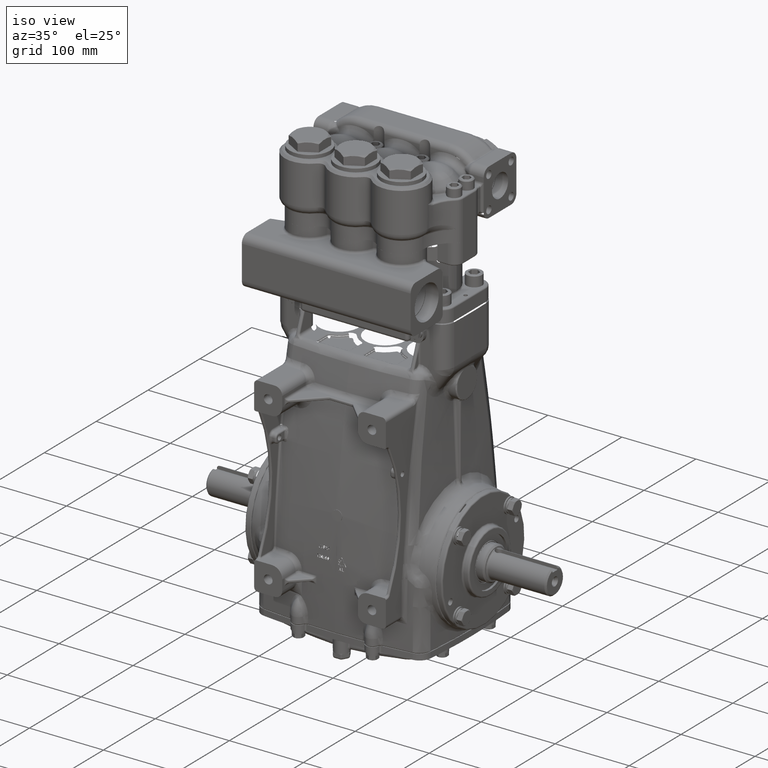
[diagram: clean part render]
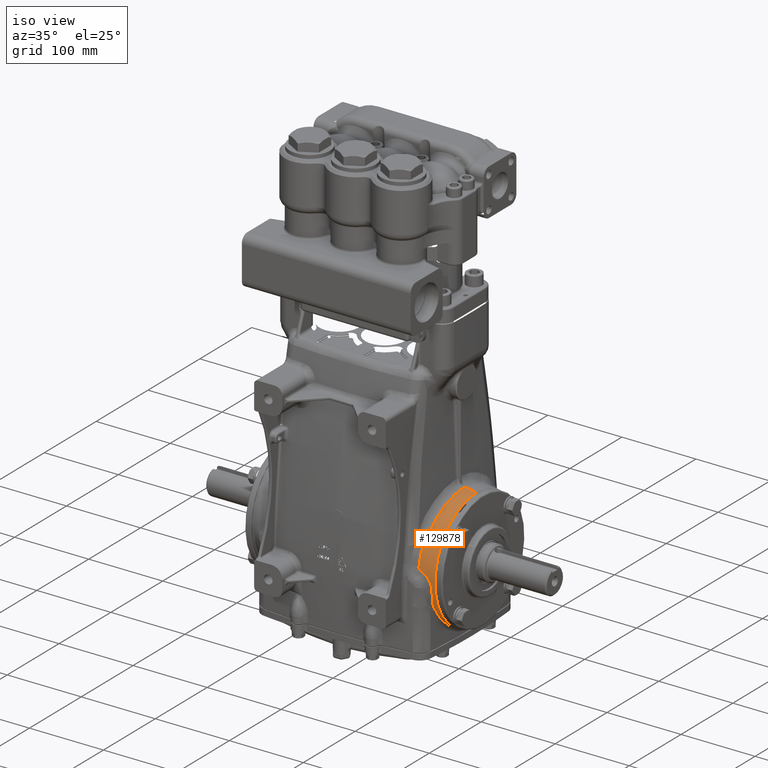
[diagram: same view with one face highlighted and labeled with its STEP entity id]
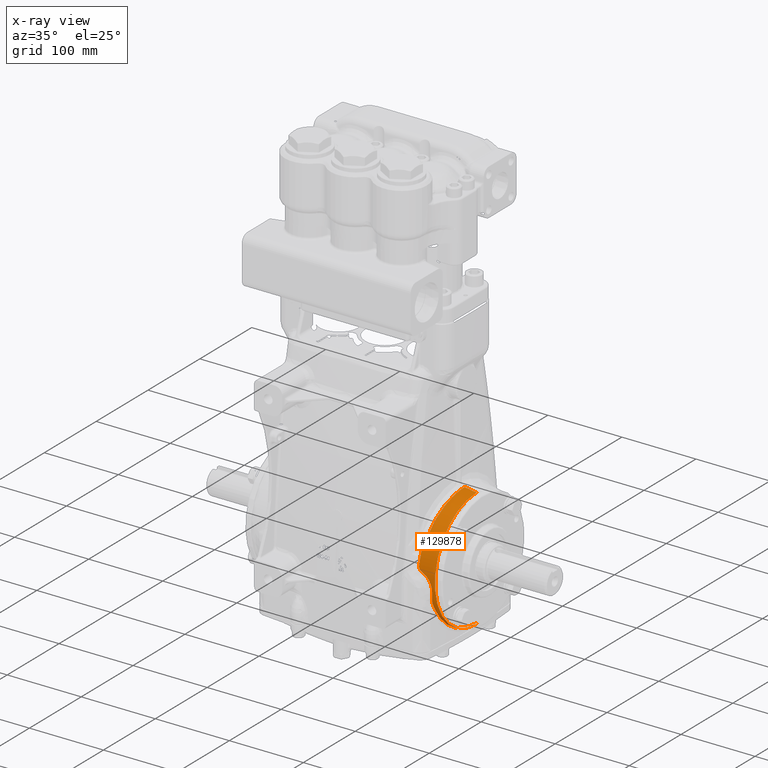
[diagram: x-ray of the same camera — body ghosted, the highlighted face saturated]
A machine part, iso view. The second image highlights one B-rep face of the part: STEP entity #129878.
The next image is the same camera in x-ray: the body ghosted, the highlighted face saturated — about 0% of this face is hidden behind the body in this view.
In plain terms, the highlighted toroidal blend (fillet) surface has major radius 710.174 mm and minor (blend) radius 800 mm.
Its self-contained STEP definition (entity closure, byte-faithful):
#263 = ORIENTED_EDGE ( 'NONE', *, *, #130620, .F. ) ;
#523 = CARTESIAN_POINT ( 'NONE',  ( 4.811355340674883685, -0.2864910433851791671, -3.157124972228495086 ) ) ;
#1116 = CARTESIAN_POINT ( 'NONE',  ( 4.240991227555344523, -0.1264003216158212650, 3.249621060336789657 ) ) ;
#1172 = CARTESIAN_POINT ( 'NONE',  ( 4.671995195232788944, -2.817595301799574514, -1.491509972633686898 ) ) ;
#1260 = CARTESIAN_POINT ( 'NONE',  ( 4.065177188191593238, -3.083984889762754644, 1.098068107524425852 ) ) ;
#1502 = CARTESIAN_POINT ( 'NONE',  ( 4.146795280029016872, -2.739778042975806294, 1.784677835696039105 ) ) ;
#3048 = VERTEX_POINT ( 'NONE', #75154 ) ;
#3328 = CARTESIAN_POINT ( 'NONE',  ( 4.674638175687860553, -3.086997047895380319, -0.7981781258625720854 ) ) ;
#5136 = DIRECTION ( 'NONE',  ( 1.000000000000000000, -0.0000000000000000000, 1.014631576207051350E-16 ) ) ;
#5890 = B_SPLINE_CURVE_WITH_KNOTS ( 'NONE', 3,
 ( #22433, #63108, #103806, #12400 ),
 .UNSPECIFIED., .F., .F.,
 ( 4, 4 ),
 ( 0.0000000000000000000, 1.000000000000000000 ),
 .UNSPECIFIED. ) ;
#9150 = CARTESIAN_POINT ( 'NONE',  ( 4.143842590774164947, -3.231423251180023382, 0.4531311649784011686 ) ) ;
#10098 = AXIS2_PLACEMENT_3D ( 'NONE', #110833, #40145, #80836 ) ;
#11137 = CARTESIAN_POINT ( 'NONE',  ( 4.235682771569069693, -0.6266466288404147766, 3.191829271269768231 ) ) ;
#11191 = CARTESIAN_POINT ( 'NONE',  ( 4.701454750326896637, -2.506536445759398823, -1.967938369618047689 ) ) ;
#11276 = CARTESIAN_POINT ( 'NONE',  ( 4.068196207595590863, -3.204746991281274049, 0.6630307251519698131 ) ) ;
#11345 = CARTESIAN_POINT ( 'NONE',  ( 2.731847993664263218E-15, 0.0000000000000000000, 0.0000000000000000000 ) ) ;
#12400 = CARTESIAN_POINT ( 'NONE',  ( 4.637802879207589157, -2.974517227941448461, -1.161161906720954651 ) ) ;
#13371 = CARTESIAN_POINT ( 'NONE',  ( 4.627811670758023688, -3.003579151184962548, -1.090805080114700454 ) ) ;
#13437 = AXIS2_PLACEMENT_3D ( 'NONE', #11345, #52052, #92723 ) ;
#15936 = VERTEX_POINT ( 'NONE', #43703 ) ;
#16753 = CARTESIAN_POINT ( 'NONE',  ( 4.306769883665692689, -3.220916920437658870, 0.3587307481807804899 ) ) ;
#20135 = ORIENTED_EDGE ( 'NONE', *, *, #48328, .F. ) ;
#21151 = CARTESIAN_POINT ( 'NONE',  ( 4.220173851410993215, -1.229921036881801433, 3.013587734413658570 ) ) ;
#21210 = CARTESIAN_POINT ( 'NONE',  ( 4.750268013655625232, -1.891747720313454284, -2.567528510850987988 ) ) ;
#21369 = FACE_OUTER_BOUND ( 'NONE', #102421, .T. ) ;
#21446 = ORIENTED_EDGE ( 'NONE', *, *, #78031, .F. ) ;
#22433 = CARTESIAN_POINT ( 'NONE',  ( 4.671995195232788944, -2.817595301799574514, -1.491509972633686898 ) ) ;
#26751 = ORIENTED_EDGE ( 'NONE', *, *, #35128, .F. ) ;
#26759 = CARTESIAN_POINT ( 'NONE',  ( 4.526293261852023520, -3.205334629084368725, 0.1742590804353988387 ) ) ;
#26985 = ORIENTED_EDGE ( 'NONE', *, *, #39523, .F. ) ;
#28787 = B_SPLINE_CURVE_WITH_KNOTS ( 'NONE', 3,
 ( #52237, #92910, #1502, #42226 ),
 .UNSPECIFIED., .F., .F.,
 ( 4, 4 ),
 ( 0.0000000000000000000, 1.000000000000000000 ),
 .UNSPECIFIED. ) ;
#30756 = ORIENTED_EDGE ( 'NONE', *, *, #37747, .F. ) ;
#31172 = CARTESIAN_POINT ( 'NONE',  ( 4.192740757286638420, -1.893362396004754089, 2.661075382058560646 ) ) ;
#31233 = CARTESIAN_POINT ( 'NONE',  ( 4.790303181778289954, -1.127149556421079390, -2.966354360120121214 ) ) ;
#31609 = CARTESIAN_POINT ( 'NONE',  ( 4.068196207595590863, -3.204746991281274049, 0.6630307251519698131 ) ) ;
#31972 = CARTESIAN_POINT ( 'NONE',  ( 4.073807278298714252, -2.959947933500720829, 1.394250575635964218 ) ) ;
#32267 = CARTESIAN_POINT ( 'NONE',  ( 4.671995195232788944, -2.817595301799574514, -1.491509972633686898 ) ) ;
#33141 = ORIENTED_EDGE ( 'NONE', *, *, #106257, .F. ) ;
#35128 = EDGE_CURVE ( 'NONE', #113731, #94654, #62079, .T. ) ;
#36775 = CARTESIAN_POINT ( 'NONE',  ( 4.713406592358675873, -3.169753574594053269, -0.2763370845249724650 ) ) ;
#37747 = EDGE_CURVE ( 'NONE', #100721, #111430, #5890, .T. ) ;
#39523 = EDGE_CURVE ( 'NONE', #15936, #100721, #108908, .T. ) ;
#39839 = CARTESIAN_POINT ( 'NONE',  ( 4.065899536981142148, -3.210822228740024542, 0.6351427620540452956 ) ) ;
#40130 = VERTEX_POINT ( 'NONE', #130303 ) ;
#40145 = DIRECTION ( 'NONE',  ( 0.0000000000000000000, 1.000000000000000000, 0.0000000000000000000 ) ) ;
#41175 = CARTESIAN_POINT ( 'NONE',  ( 4.154195439504829501, -2.605888995820426324, 1.960963033933472488 ) ) ;
#41230 = CARTESIAN_POINT ( 'NONE',  ( 4.806998052755426798, -0.5733832258980167129, -3.118500223422494333 ) ) ;
#41832 = CARTESIAN_POINT ( 'NONE',  ( 4.240991282790828265, 4.693753063019659436E-11, 3.249621495888693978 ) ) ;
#41979 = CARTESIAN_POINT ( 'NONE',  ( 4.061345028220673115, -3.062310547445739051, 1.158547218389684108 ) ) ;
#42226 = CARTESIAN_POINT ( 'NONE',  ( 4.154195439504829501, -2.605888995820426324, 1.960963033933472488 ) ) ;
#42284 = CARTESIAN_POINT ( 'NONE',  ( 4.073807278298714252, -2.959947933500720829, 1.394250575635964218 ) ) ;
#43703 = CARTESIAN_POINT ( 'NONE',  ( 4.812441923013113687, -1.481110120753864741E-07, -3.166625558008697272 ) ) ;
#44043 = CARTESIAN_POINT ( 'NONE',  ( 4.712714316162791128, -3.132927912143915083, -0.5762095819734214253 ) ) ;
#45851 = DIRECTION ( 'NONE',  ( 1.730681562182256507E-16, 0.0000000000000000000, -1.000000000000000000 ) ) ;
#46031 = AXIS2_PLACEMENT_3D ( 'NONE', #46460, #87152, #127834 ) ;
#46460 = CARTESIAN_POINT ( 'NONE',  ( 5.568718060300463558E-15, 3.424064387676790698E-15, -27.95960753795100473 ) ) ;
#47233 = ORIENTED_EDGE ( 'NONE', *, *, #47487, .F. ) ;
#47487 = EDGE_CURVE ( 'NONE', #111430, #3048, #51140, .T. ) ;
#48328 = EDGE_CURVE ( 'NONE', #40130, #15936, #67598, .T. ) ;
#49857 = CARTESIAN_POINT ( 'NONE',  ( 4.095643959304354098, -3.226644982486874813, 0.5252720837617583793 ) ) ;
#51140 = B_SPLINE_CURVE_WITH_KNOTS ( 'NONE', 3,
 ( #114747, #13371, #54056, #94733, #3328, #44043, #84733, #125400 ),
 .UNSPECIFIED., .F., .F.,
 ( 4, 2, 2, 4 ),
 ( 0.0000000000000000000, 0.2500000000000000000, 0.5000000000000000000, 1.000000000000000000 ),
 .UNSPECIFIED. ) ;
#51234 = CARTESIAN_POINT ( 'NONE',  ( 4.812441923013113687, -1.481110120753864741E-07, -3.166625558008697272 ) ) ;
#51844 = CARTESIAN_POINT ( 'NONE',  ( 4.237652013864519951, -0.5030473467529149589, 3.213374542601915795 ) ) ;
#51895 = CARTESIAN_POINT ( 'NONE',  ( 4.686071756050094628, -2.674197270636395007, -1.737510335107369741 ) ) ;
#51983 = CARTESIAN_POINT ( 'NONE',  ( 4.078678006966289793, -3.177020150542402277, 0.7903088960410987740 ) ) ;
#52052 = DIRECTION ( 'NONE',  ( -1.000000000000000000, 0.0000000000000000000, -1.014631576207059362E-16 ) ) ;
#52237 = CARTESIAN_POINT ( 'NONE',  ( 4.073807278298714252, -2.959947933500720829, 1.394250575635964218 ) ) ;
#54056 = CARTESIAN_POINT ( 'NONE',  ( 4.635675277813445128, -3.027706349366337424, -1.018264804609938068 ) ) ;
#55936 = B_SPLINE_CURVE_WITH_KNOTS ( 'NONE', 3,
 ( #41175, #81859, #122534, #31172, #71863, #112514, #21151, #61833, #102551, #11137, #51844, #92515, #1116, #41832 ),
 .UNSPECIFIED., .F., .F.,
 ( 4, 2, 2, 2, 2, 2, 4 ),
 ( 0.0000000000000000000, 0.1250000000000001665, 0.2500000000000002776, 0.3125000000000003331, 0.3750000000000003886, 0.4375000000000003886, 0.4998300329576842449 ),
 .UNSPECIFIED. ) ;
#56723 = CARTESIAN_POINT ( 'NONE',  ( 4.874534027504088485, -3.866163451790151959E-16, 3.156962035488049434 ) ) ;
#57429 = CARTESIAN_POINT ( 'NONE',  ( 4.241293303835878881, -3.226001539249478522, 0.3907520896382901676 ) ) ;
#59860 = CARTESIAN_POINT ( 'NONE',  ( 4.241293303835878881, -3.226001539249478522, 0.3907520896382901676 ) ) ;
#61272 = CIRCLE ( 'NONE', #78320, 3.156962035488045437 ) ;
#61833 = CARTESIAN_POINT ( 'NONE',  ( 4.227452895496238483, -0.9916091823206050204, 3.099148475327404118 ) ) ;
#61892 = CARTESIAN_POINT ( 'NONE',  ( 4.734056748507328827, -2.115109540578937963, -2.390187588732937574 ) ) ;
#62079 = B_SPLINE_CURVE_WITH_KNOTS ( 'NONE', 3,
 ( #11276, #51983, #92664, #1260, #41979, #82663, #123331, #31972 ),
 .UNSPECIFIED., .F., .F.,
 ( 4, 2, 2, 4 ),
 ( 0.0000000000000000000, 0.4999999999999998890, 0.7499999999999998890, 1.000000000000000000 ),
 .UNSPECIFIED. ) ;
#62670 = ORIENTED_EDGE ( 'NONE', *, *, #119142, .F. ) ;
#63108 = CARTESIAN_POINT ( 'NONE',  ( 4.666255815391464168, -2.875076720657021578, -1.384762528334551934 ) ) ;
#67440 = CARTESIAN_POINT ( 'NONE',  ( 4.476645519390706873, -3.208994383556206920, 0.2276715050428013698 ) ) ;
#67598 = CIRCLE ( 'NONE', #10098, 31.49606299212598515 ) ;
#67954 = CARTESIAN_POINT ( 'NONE',  ( 4.241293303835878881, -3.226001539249478522, 0.3907520896382901676 ) ) ;
#70988 = TOROIDAL_SURFACE ( 'NONE', #13437, -27.95960753795100473, 31.49606299212598515 ) ;
#71863 = CARTESIAN_POINT ( 'NONE',  ( 4.202810139903888853, -1.683555856827035235, 2.796809853205855845 ) ) ;
#71920 = CARTESIAN_POINT ( 'NONE',  ( 4.778555225248720895, -1.391094182752331765, -2.854125396673355741 ) ) ;
#75154 = CARTESIAN_POINT ( 'NONE',  ( 4.713406592358675873, -3.169753574594053269, -0.2763370845249724650 ) ) ;
#77462 = CARTESIAN_POINT ( 'NONE',  ( 4.701623159952063702, -3.183729317627611355, -0.1365620709503548025 ) ) ;
#77505 = EDGE_CURVE ( 'NONE', #115328, #95974, #55936, .T. ) ;
#78031 = EDGE_CURVE ( 'NONE', #3048, #104324, #93990, .T. ) ;
#78320 = AXIS2_PLACEMENT_3D ( 'NONE', #96556, #5136, #45851 ) ;
#80527 = CARTESIAN_POINT ( 'NONE',  ( 4.068196207595590863, -3.204746991281274049, 0.6630307251519698131 ) ) ;
#80836 = DIRECTION ( 'NONE',  ( 0.0000000000000000000, 0.0000000000000000000, 1.000000000000000000 ) ) ;
#81859 = CARTESIAN_POINT ( 'NONE',  ( 4.162494047696327470, -2.455744562737092185, 2.158650908438247917 ) ) ;
#81915 = CARTESIAN_POINT ( 'NONE',  ( 4.803734397380607035, -0.7155610294733516508, -3.089427977752311705 ) ) ;
#82663 = CARTESIAN_POINT ( 'NONE',  ( 4.059840737327628624, -3.014675423165702028, 1.277885004256982260 ) ) ;
#84592 = VERTEX_POINT ( 'NONE', #56723 ) ;
#84733 = CARTESIAN_POINT ( 'NONE',  ( 4.726144590640167564, -3.154645668425971827, -0.4274351538967189890 ) ) ;
#87152 = DIRECTION ( 'NONE',  ( 1.242565312115808949E-32, -1.000000000000000000, -1.224646799147353207E-16 ) ) ;
#90524 = CARTESIAN_POINT ( 'NONE',  ( 4.083574776814294260, -3.223938539801954217, 0.5512469625813745111 ) ) ;
#91504 = CARTESIAN_POINT ( 'NONE',  ( 4.240991282790828265, 4.693753063019659436E-11, 3.249621495888693978 ) ) ;
#91910 = CARTESIAN_POINT ( 'NONE',  ( 4.812441922088052770, -0.1431869754493966251, -3.166625618446515134 ) ) ;
#92515 = CARTESIAN_POINT ( 'NONE',  ( 4.240305217706549890, -0.2533055434038216092, 3.242258551654292553 ) ) ;
#92572 = CARTESIAN_POINT ( 'NONE',  ( 4.678748902777146945, -2.749955120518025264, -1.617123025120611901 ) ) ;
#92664 = CARTESIAN_POINT ( 'NONE',  ( 4.074960399868632344, -3.143860997543816982, 0.9148230346869269392 ) ) ;
#92723 = DIRECTION ( 'NONE',  ( 1.014631576207059362E-16, 0.0000000000000000000, -1.000000000000000000 ) ) ;
#92910 = CARTESIAN_POINT ( 'NONE',  ( 4.114205068007505517, -2.860559231075403996, 1.592883702391712397 ) ) ;
#93990 = B_SPLINE_CURVE_WITH_KNOTS ( 'NONE', 3,
 ( #36775, #77462, #118122, #26759, #67440, #108125, #16753, #57429 ),
 .UNSPECIFIED., .F., .F.,
 ( 4, 2, 2, 4 ),
 ( 0.0000000000000000000, 0.4999999999999998890, 0.7500000000000000000, 1.000000000000000000 ),
 .UNSPECIFIED. ) ;
#94654 = VERTEX_POINT ( 'NONE', #42284 ) ;
#94733 = CARTESIAN_POINT ( 'NONE',  ( 4.659041407288404990, -3.069411880862395581, -0.8719676970051276621 ) ) ;
#95974 = VERTEX_POINT ( 'NONE', #91504 ) ;
#96556 = CARTESIAN_POINT ( 'NONE',  ( 4.874534027504088485, 0.0000000000000000000, 4.945856143601376801E-16 ) ) ;
#98768 = CARTESIAN_POINT ( 'NONE',  ( 4.154195439504829501, -2.605888995820426324, 1.960963033933472488 ) ) ;
#100563 = CARTESIAN_POINT ( 'NONE',  ( 4.189968773506881128, -3.229987173090322017, 0.4158523669530884703 ) ) ;
#100721 = VERTEX_POINT ( 'NONE', #32267 ) ;
#102421 = EDGE_LOOP ( 'NONE', ( #62670, #122068, #120511, #263, #26751, #33141, #21446, #47233, #30756, #26985, #20135 ) ) ;
#102551 = CARTESIAN_POINT ( 'NONE',  ( 4.230583354813282959, -0.8709274565133807711, 3.134715635904268716 ) ) ;
#102611 = CARTESIAN_POINT ( 'NONE',  ( 4.709561670205832939, -2.414074059703260833, -2.078551350158719835 ) ) ;
#103587 = CIRCLE ( 'NONE', #46031, 31.49606299212598515 ) ;
#103806 = CARTESIAN_POINT ( 'NONE',  ( 4.653840769993426996, -2.927867021512045032, -1.274098702111998715 ) ) ;
#104324 = VERTEX_POINT ( 'NONE', #67954 ) ;
#106257 = EDGE_CURVE ( 'NONE', #104324, #113731, #126944, .T. ) ;
#107809 = CARTESIAN_POINT ( 'NONE',  ( 4.637802879207589157, -2.974517227941448461, -1.161161906720954651 ) ) ;
#108125 = CARTESIAN_POINT ( 'NONE',  ( 4.367240834308786290, -3.216752620590586087, 0.3194208989799462994 ) ) ;
#108908 = B_SPLINE_CURVE_WITH_KNOTS ( 'NONE', 3,
 ( #51234, #91910, #523, #41230, #81915, #122592, #31233, #71920, #112576, #21210, #61892, #102611, #11191, #51895, #92572, #1172 ),
 .UNSPECIFIED., .F., .F.,
 ( 4, 2, 2, 2, 2, 2, 2, 4 ),
 ( 0.5000483756456942652, 0.5624999999999996669, 0.6249999999999996669, 0.6874999999999996669, 0.7499999999999997780, 0.8749999999999997780, 0.9375000000000000000, 1.000000000000000000 ),
 .UNSPECIFIED. ) ;
#110833 = CARTESIAN_POINT ( 'NONE',  ( -1.050220729719372817E-16, 0.0000000000000000000, 27.95960753795100473 ) ) ;
#111430 = VERTEX_POINT ( 'NONE', #107809 ) ;
#112514 = CARTESIAN_POINT ( 'NONE',  ( 4.216049932389253740, -1.346590706294731099, 2.963853008133497280 ) ) ;
#112576 = CARTESIAN_POINT ( 'NONE',  ( 4.771837944189591951, -1.520853784674521147, -2.788342514089747759 ) ) ;
#113731 = VERTEX_POINT ( 'NONE', #31609 ) ;
#114747 = CARTESIAN_POINT ( 'NONE',  ( 4.637802879207589157, -2.974517227941448461, -1.161161906720954651 ) ) ;
#115328 = VERTEX_POINT ( 'NONE', #98768 ) ;
#116684 = EDGE_CURVE ( 'NONE', #84592, #95974, #103587, .T. ) ;
#118122 = CARTESIAN_POINT ( 'NONE',  ( 4.650113480402072064, -3.193484163472381177, 0.0007540518981901967463 ) ) ;
#119142 = EDGE_CURVE ( 'NONE', #84592, #40130, #61272, .T. ) ;
#120511 = ORIENTED_EDGE ( 'NONE', *, *, #77505, .F. ) ;
#122068 = ORIENTED_EDGE ( 'NONE', *, *, #116684, .T. ) ;
#122534 = CARTESIAN_POINT ( 'NONE',  ( 4.172413239403286234, -2.282509996542392283, 2.339665665247994131 ) ) ;
#122592 = CARTESIAN_POINT ( 'NONE',  ( 4.795392943022132037, -0.9920313528584013829, -3.013406244147627255 ) ) ;
#123331 = CARTESIAN_POINT ( 'NONE',  ( 4.062115507457966679, -2.988712625195999451, 1.336762948548139152 ) ) ;
#125400 = CARTESIAN_POINT ( 'NONE',  ( 4.713406592358675873, -3.169753574594053269, -0.2763370845249724650 ) ) ;
#126944 = B_SPLINE_CURVE_WITH_KNOTS ( 'NONE', 3,
 ( #59860, #100563, #9150, #49857, #90524, #131232, #39839, #80527 ),
 .UNSPECIFIED., .F., .F.,
 ( 4, 2, 2, 4 ),
 ( 0.0000000000000000000, 0.5000000000000000000, 0.7499999999999998890, 1.000000000000000000 ),
 .UNSPECIFIED. ) ;
#127834 = DIRECTION ( 'NONE',  ( 0.0000000000000000000, 1.224646799147353454E-16, -1.000000000000000000 ) ) ;
#129878 = ADVANCED_FACE ( 'NONE', ( #21369 ), #70988, .T. ) ;
#130303 = CARTESIAN_POINT ( 'NONE',  ( 4.874534027504089373, 0.0000000000000000000, -3.156962035488048102 ) ) ;
#130620 = EDGE_CURVE ( 'NONE', #94654, #115328, #28787, .T. ) ;
#131232 = CARTESIAN_POINT ( 'NONE',  ( 4.068598189055826708, -3.216070234104933867, 0.6060814687319485694 ) ) ;